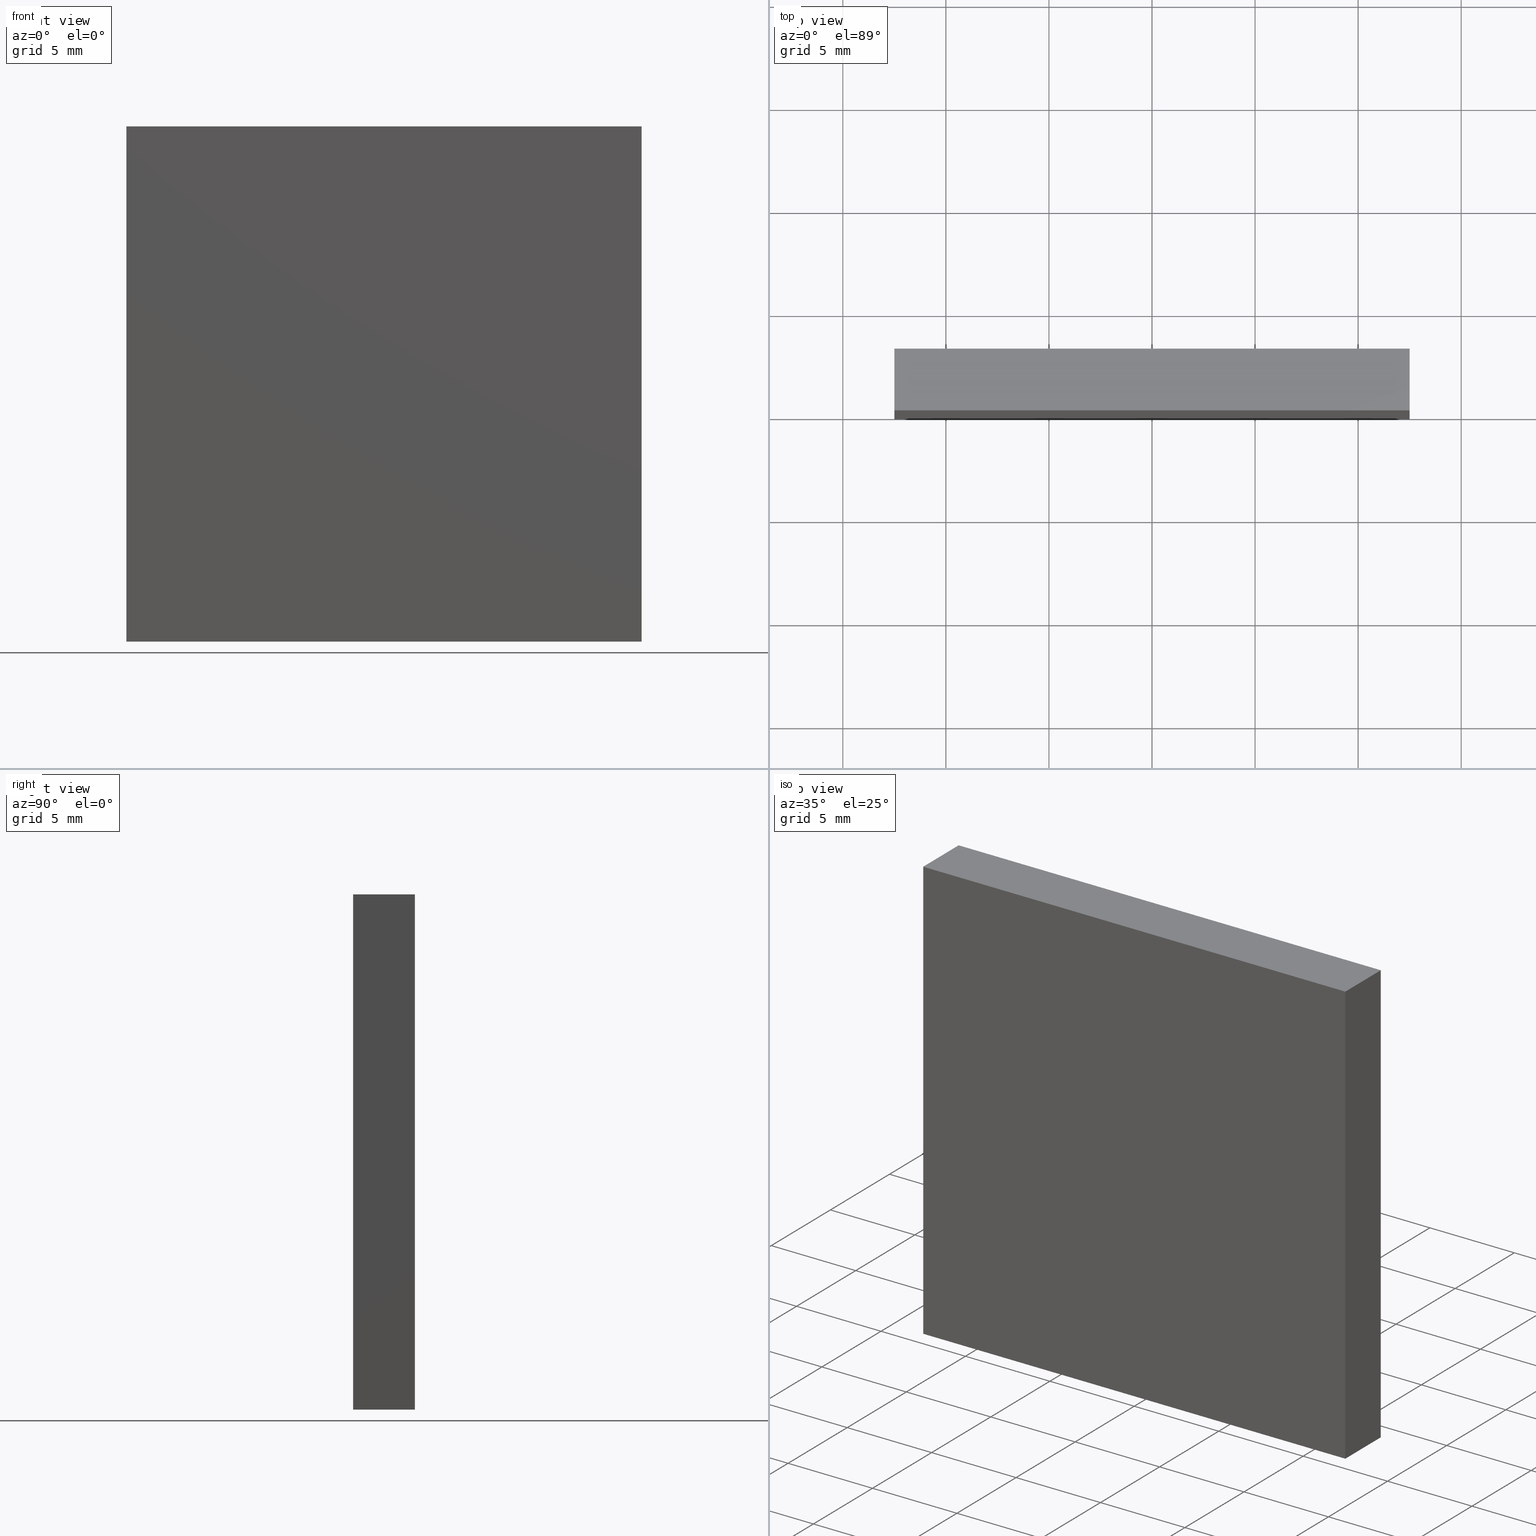
[diagram: canonical four-view strip — front | top / right | iso, engineering-drawing reading convention]
A machine part, canonical four-view strip (front | top / right | iso — engineering-drawing reading convention). The complete STEP part file that produces these views, byte-faithful:
ISO-10303-21;
HEADER;
FILE_DESCRIPTION (( 'STEP AP214' ),
    '1' );
FILE_NAME ('345504.STEP',
    '2019-08-12T03:30:51',
    ( 'user' ),
    ( '΢���й�' ),
    'SwSTEP 2.0',
    'SolidWorks 2016',
    '' );
FILE_SCHEMA (( 'AUTOMOTIVE_DESIGN' ));
ENDSEC;

DATA;
#1 = PRODUCT_RELATED_PRODUCT_CATEGORY ( 'part', '', ( #16 ) ) ;
#2 = VECTOR ( 'NONE', #81, 1000.000000000000000 ) ;
#3 = APPLICATION_PROTOCOL_DEFINITION ( 'draft international standard', 'automotive_design', 1998, #99 ) ;
#4 = APPLICATION_CONTEXT ( 'automotive_design' ) ;
#5 = VECTOR ( 'NONE', #28, 1000.000000000000000 ) ;
#6 = EDGE_CURVE ( 'NONE', #26, #132, #199, .T. ) ;
#7 =( LENGTH_UNIT ( ) NAMED_UNIT ( * ) SI_UNIT ( .MILLI., .METRE. ) );
#8 = DIRECTION ( 'NONE',  ( 1.000000000000000000, 0.0000000000000000000, -1.387778780781445400E-016 ) ) ;
#9 = FACE_OUTER_BOUND ( 'NONE', #145, .T. ) ;
#10 = CARTESIAN_POINT ( 'NONE',  ( -12.50000000000000200, 0.0000000000000000000, -12.49999999999999600 ) ) ;
#11 = DIRECTION ( 'NONE',  ( -1.000000000000000000, -0.0000000000000000000, -0.0000000000000000000 ) ) ;
#12 = ADVANCED_FACE ( 'NONE', ( #183 ), #163, .F. ) ;
#13 = ORIENTED_EDGE ( 'NONE', *, *, #6, .T. ) ;
#14 = EDGE_CURVE ( 'NONE', #83, #44, #97, .T. ) ;
#15 = VERTEX_POINT ( 'NONE', #93 ) ;
#16 = PRODUCT ( '345504', '345504', '', ( #19 ) ) ;
#17 =( GEOMETRIC_REPRESENTATION_CONTEXT ( 3 ) GLOBAL_UNCERTAINTY_ASSIGNED_CONTEXT ( ( #90 ) ) GLOBAL_UNIT_ASSIGNED_CONTEXT ( ( #49, #136, #36 ) ) REPRESENTATION_CONTEXT ( 'NONE', 'WORKASPACE' ) );
#18 = UNCERTAINTY_MEASURE_WITH_UNIT (LENGTH_MEASURE( 1.000000000000000100E-005 ), #64, 'distance_accuracy_value', 'NONE');
#19 = PRODUCT_CONTEXT ( 'NONE', #4, 'mechanical' ) ;
#20 = APPLICATION_PROTOCOL_DEFINITION ( 'draft international standard', 'automotive_design', 1998, #4 ) ;
#21 = CARTESIAN_POINT ( 'NONE',  ( -12.49999999999999800, 0.0000000000000000000, 12.50000000000000400 ) ) ;
#22 = SURFACE_SIDE_STYLE ('',( #23 ) ) ;
#23 = SURFACE_STYLE_FILL_AREA ( #120 ) ;
#24 = DIRECTION ( 'NONE',  ( -0.0000000000000000000, -1.000000000000000000, -0.0000000000000000000 ) ) ;
#25 = CARTESIAN_POINT ( 'NONE',  ( -12.49999999999999800, 3.000000000000000000, 12.50000000000000400 ) ) ;
#26 = VERTEX_POINT ( 'NONE', #82 ) ;
#27 = VECTOR ( 'NONE', #198, 1000.000000000000000 ) ;
#28 = DIRECTION ( 'NONE',  ( 1.387778780781445700E-016, 0.0000000000000000000, 1.000000000000000000 ) ) ;
#29 = EDGE_CURVE ( 'NONE', #132, #98, #60, .T. ) ;
#30 = ADVANCED_FACE ( 'NONE', ( #72 ), #141, .F. ) ;
#31 = AXIS2_PLACEMENT_3D ( 'NONE', #65, #50, #137 ) ;
#32 = ORIENTED_EDGE ( 'NONE', *, *, #153, .T. ) ;
#33 = VECTOR ( 'NONE', #162, 1000.000000000000000 ) ;
#34 = PRESENTATION_STYLE_ASSIGNMENT (( #171 ) ) ;
#35 = DIRECTION ( 'NONE',  ( 0.0000000000000000000, 0.0000000000000000000, 1.000000000000000000 ) ) ;
#36 =( NAMED_UNIT ( * ) SI_UNIT ( $, .STERADIAN. ) SOLID_ANGLE_UNIT ( ) );
#37 = DIRECTION ( 'NONE',  ( -0.0000000000000000000, -1.000000000000000000, -0.0000000000000000000 ) ) ;
#38 = EDGE_CURVE ( 'NONE', #39, #83, #63, .T. ) ;
#39 = VERTEX_POINT ( 'NONE', #178 ) ;
#40 = FILL_AREA_STYLE_COLOUR ( '', #190 ) ;
#41 = PLANE ( 'NONE',  #139 ) ;
#42 = CARTESIAN_POINT ( 'NONE',  ( 0.0000000000000000000, 3.000000000000000000, 0.0000000000000000000 ) ) ;
#43 = DIRECTION ( 'NONE',  ( -1.000000000000000000, 0.0000000000000000000, 1.387778780781445400E-016 ) ) ;
#44 = VERTEX_POINT ( 'NONE', #91 ) ;
#45 = EDGE_CURVE ( 'NONE', #44, #54, #113, .T. ) ;
#46 = VECTOR ( 'NONE', #11, 1000.000000000000000 ) ;
#47 = STYLED_ITEM ( 'NONE', ( #34 ), #108 ) ;
#48 =( NAMED_UNIT ( * ) SI_UNIT ( $, .STERADIAN. ) SOLID_ANGLE_UNIT ( ) );
#49 =( LENGTH_UNIT ( ) NAMED_UNIT ( * ) SI_UNIT ( .MILLI., .METRE. ) );
#50 = DIRECTION ( 'NONE',  ( 0.0000000000000000000, 0.0000000000000000000, 1.000000000000000000 ) ) ;
#51 = DIRECTION ( 'NONE',  ( -1.000000000000000000, 0.0000000000000000000, -0.0000000000000000000 ) ) ;
#52 = CARTESIAN_POINT ( 'NONE',  ( -12.50000000000000200, 0.0000000000000000000, -12.49999999999999600 ) ) ;
#53 = ORIENTED_EDGE ( 'NONE', *, *, #76, .F. ) ;
#54 = VERTEX_POINT ( 'NONE', #159 ) ;
#55 = CARTESIAN_POINT ( 'NONE',  ( 12.49999999999999800, 3.000000000000000000, -12.49999999999999600 ) ) ;
#56 = CARTESIAN_POINT ( 'NONE',  ( 0.0000000000000000000, 0.0000000000000000000, 0.0000000000000000000 ) ) ;
#57 = EDGE_CURVE ( 'NONE', #44, #26, #73, .T. ) ;
#58 = PRESENTATION_LAYER_ASSIGNMENT (  '', '', ( #47 ) ) ;
#59 = EDGE_LOOP ( 'NONE', ( #123, #165, #177, #186 ) ) ;
#60 = LINE ( 'NONE', #143, #5 ) ;
#61 = VECTOR ( 'NONE', #106, 1000.000000000000000 ) ;
#62 = ORIENTED_EDGE ( 'NONE', *, *, #66, .T. ) ;
#63 = LINE ( 'NONE', #25, #33 ) ;
#64 =( LENGTH_UNIT ( ) NAMED_UNIT ( * ) SI_UNIT ( .MILLI., .METRE. ) );
#65 = CARTESIAN_POINT ( 'NONE',  ( -12.50000000000000200, 3.000000000000000000, -12.49999999999999600 ) ) ;
#66 = EDGE_CURVE ( 'NONE', #54, #132, #68, .T. ) ;
#67 = EDGE_CURVE ( 'NONE', #39, #98, #109, .T. ) ;
#68 = LINE ( 'NONE', #103, #2 ) ;
#69 = DIRECTION ( 'NONE',  ( 0.0000000000000000000, -0.0000000000000000000, 1.000000000000000000 ) ) ;
#70 = CARTESIAN_POINT ( 'NONE',  ( -12.49999999999999800, 3.000000000000000000, 12.50000000000000400 ) ) ;
#71 = VECTOR ( 'NONE', #179, 1000.000000000000000 ) ;
#72 = FACE_OUTER_BOUND ( 'NONE', #92, .T. ) ;
#73 = LINE ( 'NONE', #140, #201 ) ;
#74 = ADVANCED_FACE ( 'NONE', ( #9 ), #80, .T. ) ;
#75 = ORIENTED_EDGE ( 'NONE', *, *, #14, .F. ) ;
#76 = EDGE_CURVE ( 'NONE', #54, #39, #134, .T. ) ;
#77 = COLOUR_RGB ( '',1.000000000000000000, 1.000000000000000000, 1.000000000000000000 ) ;
#78 = SURFACE_SIDE_STYLE ('',( #85 ) ) ;
#79 = CARTESIAN_POINT ( 'NONE',  ( -12.49999999999999800, 3.000000000000000000, 12.50000000000000400 ) ) ;
#80 = PLANE ( 'NONE',  #114 ) ;
#81 = DIRECTION ( 'NONE',  ( -0.0000000000000000000, -1.000000000000000000, -0.0000000000000000000 ) ) ;
#82 = CARTESIAN_POINT ( 'NONE',  ( 12.49999999999999800, 0.0000000000000000000, -12.49999999999999600 ) ) ;
#83 = VERTEX_POINT ( 'NONE', #124 ) ;
#84 = ADVANCED_FACE ( 'NONE', ( #160 ), #41, .F. ) ;
#85 = SURFACE_STYLE_FILL_AREA ( #192 ) ;
#86 = FILL_AREA_STYLE_COLOUR ( '', #77 ) ;
#87 = CARTESIAN_POINT ( 'NONE',  ( 12.49999999999999800, 0.0000000000000000000, -12.49999999999999600 ) ) ;
#88 =( NAMED_UNIT ( * ) PLANE_ANGLE_UNIT ( ) SI_UNIT ( $, .RADIAN. ) );
#89 = DIRECTION ( 'NONE',  ( -1.387778780781445400E-016, 0.0000000000000000000, -1.000000000000000000 ) ) ;
#90 = UNCERTAINTY_MEASURE_WITH_UNIT (LENGTH_MEASURE( 1.000000000000000100E-005 ), #49, 'distance_accuracy_value', 'NONE');
#91 = CARTESIAN_POINT ( 'NONE',  ( 12.49999999999999800, 3.000000000000000000, -12.49999999999999600 ) ) ;
#92 = EDGE_LOOP ( 'NONE', ( #173, #189, #75, #32 ) ) ;
#93 = CARTESIAN_POINT ( 'NONE',  ( 12.50000000000000200, 0.0000000000000000000, 12.50000000000000400 ) ) ;
#94 = ORIENTED_EDGE ( 'NONE', *, *, #57, .T. ) ;
#95 = ORIENTED_EDGE ( 'NONE', *, *, #153, .F. ) ;
#96 = AXIS2_PLACEMENT_3D ( 'NONE', #56, #166, #128 ) ;
#97 = LINE ( 'NONE', #107, #71 ) ;
#98 = VERTEX_POINT ( 'NONE', #172 ) ;
#99 = APPLICATION_CONTEXT ( 'automotive_design' ) ;
#100 = DIRECTION ( 'NONE',  ( -1.387778780781445700E-016, -0.0000000000000000000, -1.000000000000000000 ) ) ;
#101 = SURFACE_STYLE_USAGE ( .BOTH. , #22 ) ;
#102 = PLANE ( 'NONE',  #167 ) ;
#103 = CARTESIAN_POINT ( 'NONE',  ( -12.50000000000000200, 3.000000000000000000, -12.49999999999999600 ) ) ;
#104 = CARTESIAN_POINT ( 'NONE',  ( -12.50000000000000200, 3.000000000000000000, -12.49999999999999600 ) ) ;
#105 = LINE ( 'NONE', #119, #187 ) ;
#106 = DIRECTION ( 'NONE',  ( -0.0000000000000000000, -1.000000000000000000, -0.0000000000000000000 ) ) ;
#107 = CARTESIAN_POINT ( 'NONE',  ( 12.49999999999999800, 3.000000000000000000, -12.49999999999999600 ) ) ;
#108 = ADVANCED_BREP_SHAPE_REPRESENTATION ( '345504', ( #142, #170 ), #17 ) ;
#109 = LINE ( 'NONE', #70, #61 ) ;
#110 = VECTOR ( 'NONE', #156, 1000.000000000000000 ) ;
#111 = EDGE_LOOP ( 'NONE', ( #180, #95, #129, #126 ) ) ;
#112 = CLOSED_SHELL ( 'NONE', ( #30, #148, #84, #130, #74, #12 ) ) ;
#113 = LINE ( 'NONE', #104, #27 ) ;
#114 = AXIS2_PLACEMENT_3D ( 'NONE', #42, #174, #69 ) ;
#115 = ORIENTED_EDGE ( 'NONE', *, *, #45, .T. ) ;
#116 = ORIENTED_EDGE ( 'NONE', *, *, #67, .F. ) ;
#117 = DIRECTION ( 'NONE',  ( 1.000000000000000000, 0.0000000000000000000, 0.0000000000000000000 ) ) ;
#118 = MECHANICAL_DESIGN_GEOMETRIC_PRESENTATION_REPRESENTATION (  '', ( #47 ), #133 ) ;
#119 = CARTESIAN_POINT ( 'NONE',  ( 12.50000000000000200, 3.000000000000000000, 12.50000000000000400 ) ) ;
#120 = FILL_AREA_STYLE ('',( #40 ) ) ;
#121 = AXIS2_PLACEMENT_3D ( 'NONE', #55, #43, #127 ) ;
#122 = CARTESIAN_POINT ( 'NONE',  ( -12.50000000000000200, 3.000000000000000000, -12.49999999999999600 ) ) ;
#123 = ORIENTED_EDGE ( 'NONE', *, *, #200, .F. ) ;
#124 = CARTESIAN_POINT ( 'NONE',  ( 12.50000000000000200, 3.000000000000000000, 12.50000000000000400 ) ) ;
#125 = VECTOR ( 'NONE', #100, 1000.000000000000000 ) ;
#126 = ORIENTED_EDGE ( 'NONE', *, *, #67, .T. ) ;
#127 = DIRECTION ( 'NONE',  ( 1.387778780781445400E-016, 0.0000000000000000000, 1.000000000000000000 ) ) ;
#128 = DIRECTION ( 'NONE',  ( 0.0000000000000000000, -0.0000000000000000000, 1.000000000000000000 ) ) ;
#129 = ORIENTED_EDGE ( 'NONE', *, *, #38, .F. ) ;
#130 = ADVANCED_FACE ( 'NONE', ( #168 ), #102, .F. ) ;
#131 = EDGE_LOOP ( 'NONE', ( #149, #116, #53, #62 ) ) ;
#132 = VERTEX_POINT ( 'NONE', #52 ) ;
#133 =( GEOMETRIC_REPRESENTATION_CONTEXT ( 3 ) GLOBAL_UNCERTAINTY_ASSIGNED_CONTEXT ( ( #18 ) ) GLOBAL_UNIT_ASSIGNED_CONTEXT ( ( #64, #154, #48 ) ) REPRESENTATION_CONTEXT ( 'NONE', 'WORKASPACE' ) );
#134 = LINE ( 'NONE', #158, #138 ) ;
#135 = PRODUCT_DEFINITION_CONTEXT ( 'detailed design', #99, 'design' ) ;
#136 =( NAMED_UNIT ( * ) PLANE_ANGLE_UNIT ( ) SI_UNIT ( $, .RADIAN. ) );
#137 = DIRECTION ( 'NONE',  ( 1.000000000000000000, 0.0000000000000000000, -0.0000000000000000000 ) ) ;
#138 = VECTOR ( 'NONE', #197, 1000.000000000000000 ) ;
#139 = AXIS2_PLACEMENT_3D ( 'NONE', #122, #8, #89 ) ;
#140 = CARTESIAN_POINT ( 'NONE',  ( 12.49999999999999800, 3.000000000000000000, -12.49999999999999600 ) ) ;
#141 = PLANE ( 'NONE',  #121 ) ;
#142 = MANIFOLD_SOLID_BREP ( '͹̨-����1', #112 ) ;
#143 = CARTESIAN_POINT ( 'NONE',  ( -12.50000000000000200, 0.0000000000000000000, -12.49999999999999600 ) ) ;
#144 = ORIENTED_EDGE ( 'NONE', *, *, #76, .T. ) ;
#145 = EDGE_LOOP ( 'NONE', ( #182, #115, #144, #164 ) ) ;
#146 = LINE ( 'NONE', #21, #110 ) ;
#147 = ORIENTED_EDGE ( 'NONE', *, *, #66, .F. ) ;
#148 = ADVANCED_FACE ( 'NONE', ( #191 ), #196, .F. ) ;
#149 = ORIENTED_EDGE ( 'NONE', *, *, #29, .T. ) ;
#150 = LINE ( 'NONE', #87, #125 ) ;
#151 = ORIENTED_EDGE ( 'NONE', *, *, #45, .F. ) ;
#152 = STYLED_ITEM ( 'NONE', ( #169 ), #142 ) ;
#153 = EDGE_CURVE ( 'NONE', #83, #15, #105, .T. ) ;
#154 =( NAMED_UNIT ( * ) PLANE_ANGLE_UNIT ( ) SI_UNIT ( $, .RADIAN. ) );
#155 = CARTESIAN_POINT ( 'NONE',  ( 0.0000000000000000000, 0.0000000000000000000, 0.0000000000000000000 ) ) ;
#156 = DIRECTION ( 'NONE',  ( 1.000000000000000000, 0.0000000000000000000, 0.0000000000000000000 ) ) ;
#157 = DIRECTION ( 'NONE',  ( 0.0000000000000000000, 0.0000000000000000000, -1.000000000000000000 ) ) ;
#158 = CARTESIAN_POINT ( 'NONE',  ( -12.50000000000000200, 3.000000000000000000, -12.49999999999999600 ) ) ;
#159 = CARTESIAN_POINT ( 'NONE',  ( -12.50000000000000200, 3.000000000000000000, -12.49999999999999600 ) ) ;
#160 = FACE_OUTER_BOUND ( 'NONE', #131, .T. ) ;
#161 = UNCERTAINTY_MEASURE_WITH_UNIT (LENGTH_MEASURE( 1.000000000000000100E-005 ), #7, 'distance_accuracy_value', 'NONE');
#162 = DIRECTION ( 'NONE',  ( 1.000000000000000000, 0.0000000000000000000, 0.0000000000000000000 ) ) ;
#163 = PLANE ( 'NONE',  #96 ) ;
#164 = ORIENTED_EDGE ( 'NONE', *, *, #38, .T. ) ;
#165 = ORIENTED_EDGE ( 'NONE', *, *, #185, .F. ) ;
#166 = DIRECTION ( 'NONE',  ( 0.0000000000000000000, 1.000000000000000000, 0.0000000000000000000 ) ) ;
#167 = AXIS2_PLACEMENT_3D ( 'NONE', #79, #157, #51 ) ;
#168 = FACE_OUTER_BOUND ( 'NONE', #111, .T. ) ;
#169 = PRESENTATION_STYLE_ASSIGNMENT (( #101 ) ) ;
#170 = AXIS2_PLACEMENT_3D ( 'NONE', #155, #35, #117 ) ;
#171 = SURFACE_STYLE_USAGE ( .BOTH. , #78 ) ;
#172 = CARTESIAN_POINT ( 'NONE',  ( -12.49999999999999800, 0.0000000000000000000, 12.50000000000000400 ) ) ;
#173 = ORIENTED_EDGE ( 'NONE', *, *, #200, .T. ) ;
#174 = DIRECTION ( 'NONE',  ( 0.0000000000000000000, 1.000000000000000000, 0.0000000000000000000 ) ) ;
#175 = PRODUCT_DEFINITION_SHAPE ( 'NONE', 'NONE',  #181 ) ;
#176 = PRESENTATION_LAYER_ASSIGNMENT (  '', '', ( #152 ) ) ;
#177 = ORIENTED_EDGE ( 'NONE', *, *, #29, .F. ) ;
#178 = CARTESIAN_POINT ( 'NONE',  ( -12.49999999999999800, 3.000000000000000000, 12.50000000000000400 ) ) ;
#179 = DIRECTION ( 'NONE',  ( -1.387778780781445700E-016, -0.0000000000000000000, -1.000000000000000000 ) ) ;
#180 = ORIENTED_EDGE ( 'NONE', *, *, #185, .T. ) ;
#181 = PRODUCT_DEFINITION ( 'δ֪', '', #193, #135 ) ;
#182 = ORIENTED_EDGE ( 'NONE', *, *, #14, .T. ) ;
#183 = FACE_OUTER_BOUND ( 'NONE', #59, .T. ) ;
#184 = SHAPE_DEFINITION_REPRESENTATION ( #175, #108 ) ;
#185 = EDGE_CURVE ( 'NONE', #98, #15, #146, .T. ) ;
#186 = ORIENTED_EDGE ( 'NONE', *, *, #6, .F. ) ;
#187 = VECTOR ( 'NONE', #37, 1000.000000000000000 ) ;
#188 = MECHANICAL_DESIGN_GEOMETRIC_PRESENTATION_REPRESENTATION (  '', ( #152 ), #202 ) ;
#189 = ORIENTED_EDGE ( 'NONE', *, *, #57, .F. ) ;
#190 = COLOUR_RGB ( '',1.000000000000000000, 1.000000000000000000, 1.000000000000000000 ) ;
#191 = FACE_OUTER_BOUND ( 'NONE', #195, .T. ) ;
#192 = FILL_AREA_STYLE ('',( #86 ) ) ;
#193 = PRODUCT_DEFINITION_FORMATION_WITH_SPECIFIED_SOURCE ( '�κ�', '', #16, .NOT_KNOWN. ) ;
#194 =( NAMED_UNIT ( * ) SI_UNIT ( $, .STERADIAN. ) SOLID_ANGLE_UNIT ( ) );
#195 = EDGE_LOOP ( 'NONE', ( #13, #147, #151, #94 ) ) ;
#196 = PLANE ( 'NONE',  #31 ) ;
#197 = DIRECTION ( 'NONE',  ( 1.387778780781445700E-016, 0.0000000000000000000, 1.000000000000000000 ) ) ;
#198 = DIRECTION ( 'NONE',  ( -1.000000000000000000, -0.0000000000000000000, -0.0000000000000000000 ) ) ;
#199 = LINE ( 'NONE', #10, #46 ) ;
#200 = EDGE_CURVE ( 'NONE', #15, #26, #150, .T. ) ;
#201 = VECTOR ( 'NONE', #24, 1000.000000000000000 ) ;
#202 =( GEOMETRIC_REPRESENTATION_CONTEXT ( 3 ) GLOBAL_UNCERTAINTY_ASSIGNED_CONTEXT ( ( #161 ) ) GLOBAL_UNIT_ASSIGNED_CONTEXT ( ( #7, #88, #194 ) ) REPRESENTATION_CONTEXT ( 'NONE', 'WORKASPACE' ) );
ENDSEC;
END-ISO-10303-21;
